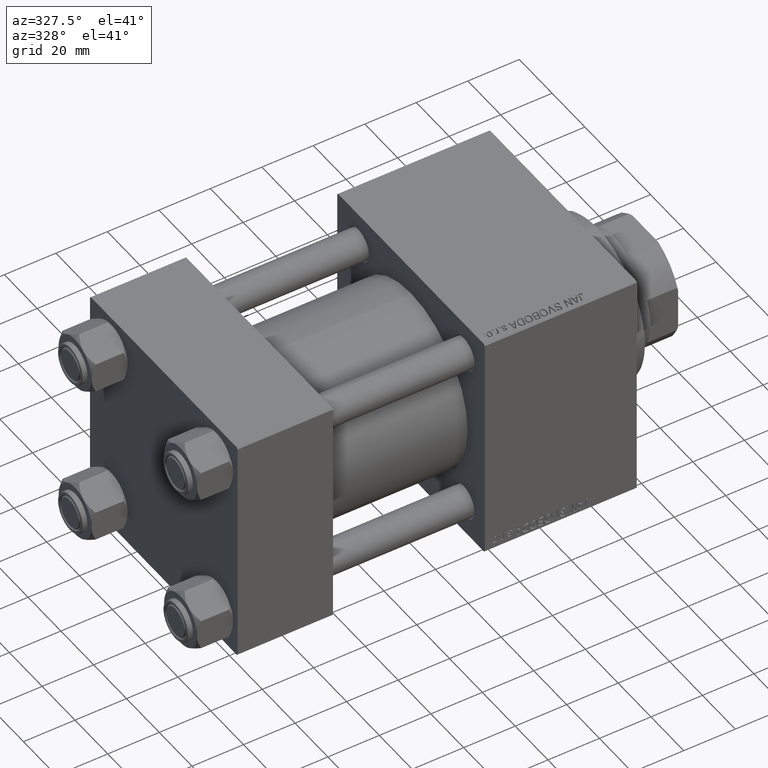
[diagram: clean part render]
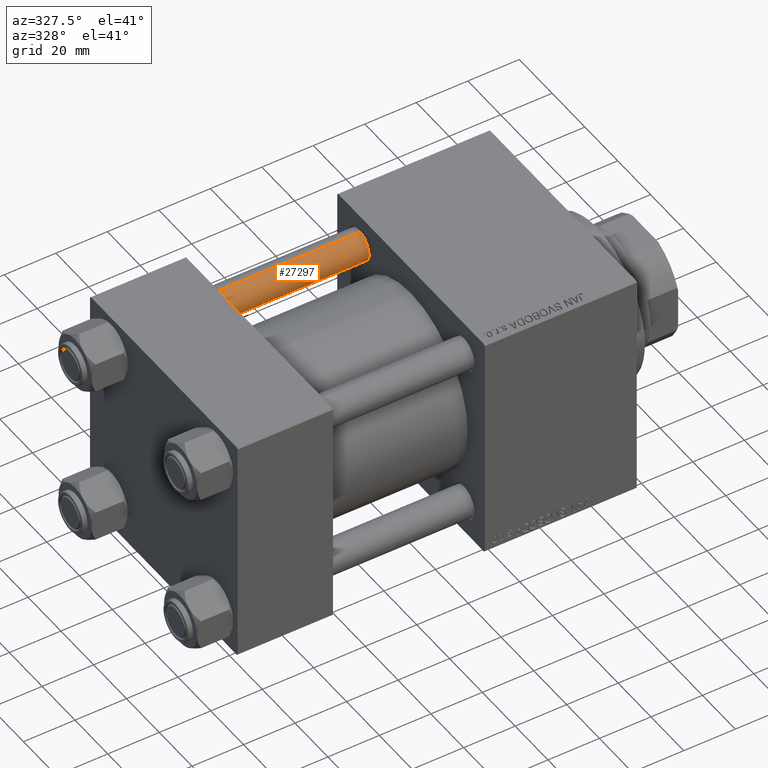
[diagram: same view with one face highlighted and labeled with its STEP entity id]
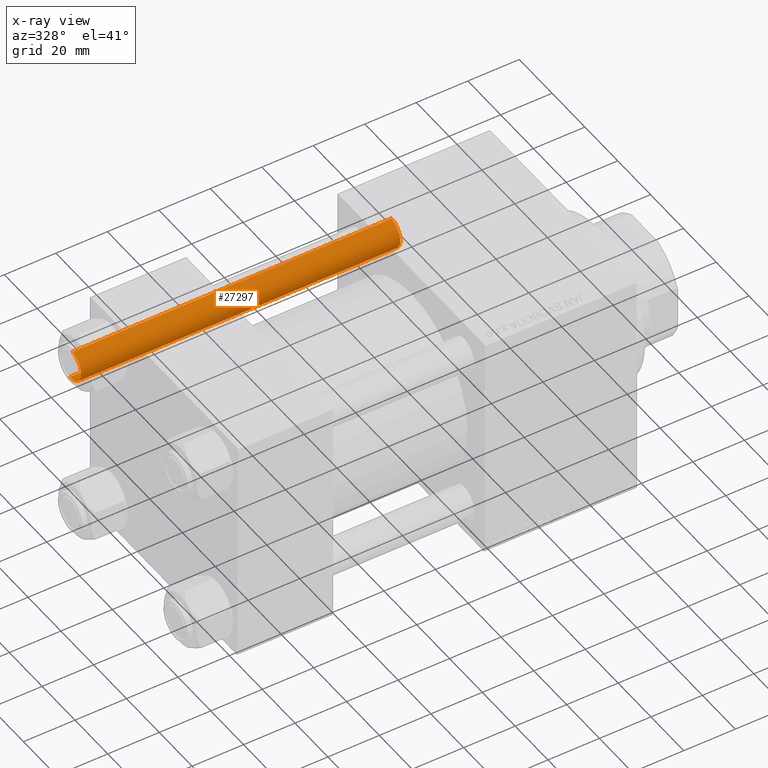
[diagram: x-ray of the same camera — body ghosted, the highlighted face saturated]
A machine part, auxiliary view. The second image highlights one B-rep face of the part: STEP entity #27297.
The next image is the same camera in x-ray: the body ghosted, the highlighted face saturated — about 0% of this face is hidden behind the body in this view.
In plain terms, the highlighted cylindrical surface (edge-blend (fillet) strip) has radius 6 mm, axis along (-1, 0, 0).
Its self-contained STEP definition (entity closure, byte-faithful):
#3095 = VERTEX_POINT ( 'NONE', #40991 ) ;
#3236 = ORIENTED_EDGE ( 'NONE', *, *, #10460, .T. ) ;
#6092 = CARTESIAN_POINT ( 'NONE',  ( 0.000000000000000000, 0.000000000000000000, 0.4999999999999865663 ) ) ;
#7191 = CARTESIAN_POINT ( 'NONE',  ( -6.000000000000000888, 0.000000000000000000, 125.0000000000000000 ) ) ;
#8195 = CARTESIAN_POINT ( 'NONE',  ( 6.000000000000000888, 7.347880794884120722E-16, 125.0000000000000000 ) ) ;
#9418 = DIRECTION ( 'NONE',  ( -0.000000000000000000, -0.000000000000000000, -1.000000000000000000 ) ) ;
#10460 = EDGE_CURVE ( 'NONE', #25505, #3095, #13463, .T. ) ;
#11263 = LINE ( 'NONE', #7191, #32155 ) ;
#11873 = DIRECTION ( 'NONE',  ( 1.000000000000000000, 0.000000000000000000, 0.000000000000000000 ) ) ;
#12623 = VERTEX_POINT ( 'NONE', #37306 ) ;
#13463 = CIRCLE ( 'NONE', #14257, 6.000000000000000888 ) ;
#14257 = AXIS2_PLACEMENT_3D ( 'NONE', #34521, #19234, #11873 ) ;
#15316 = DIRECTION ( 'NONE',  ( -0.000000000000000000, -0.000000000000000000, -1.000000000000000000 ) ) ;
#16353 = ORIENTED_EDGE ( 'NONE', *, *, #39525, .T. ) ;
#18032 = DIRECTION ( 'NONE',  ( -0.000000000000000000, -0.000000000000000000, 1.000000000000000000 ) ) ;
#19234 = DIRECTION ( 'NONE',  ( 0.000000000000000000, 0.000000000000000000, -1.000000000000000000 ) ) ;
#21277 = EDGE_CURVE ( 'NONE', #25505, #34779, #35429, .T. ) ;
#21605 = DIRECTION ( 'NONE',  ( 1.000000000000000000, 0.000000000000000000, 0.000000000000000000 ) ) ;
#24426 = FACE_OUTER_BOUND ( 'NONE', #28447, .T. ) ;
#25505 = VERTEX_POINT ( 'NONE', #38522 ) ;
#26539 = CARTESIAN_POINT ( 'NONE',  ( 6.000000000000000888, 7.347880794884120722E-16, 0.4999999999999865663 ) ) ;
#27297 = ADVANCED_FACE ( 'NONE', ( #24426 ), #28994, .T. ) ;
#28447 = EDGE_LOOP ( 'NONE', ( #30144, #3236, #16353, #35785 ) ) ;
#28491 = AXIS2_PLACEMENT_3D ( 'NONE', #36636, #9418, #44520 ) ;
#28994 = CYLINDRICAL_SURFACE ( 'NONE', #28491, 6.000000000000000888 ) ;
#30144 = ORIENTED_EDGE ( 'NONE', *, *, #21277, .F. ) ;
#32155 = VECTOR ( 'NONE', #15316, 1000.000000000000000 ) ;
#33250 = VECTOR ( 'NONE', #47118, 1000.000000000000000 ) ;
#34521 = CARTESIAN_POINT ( 'NONE',  ( 0.000000000000000000, 0.000000000000000000, 124.5000000000000000 ) ) ;
#34779 = VERTEX_POINT ( 'NONE', #26539 ) ;
#35429 = LINE ( 'NONE', #8195, #33250 ) ;
#35785 = ORIENTED_EDGE ( 'NONE', *, *, #40152, .T. ) ;
#36636 = CARTESIAN_POINT ( 'NONE',  ( 0.000000000000000000, 0.000000000000000000, 125.0000000000000000 ) ) ;
#37306 = CARTESIAN_POINT ( 'NONE',  ( -6.000000000000000888, 0.000000000000000000, 0.4999999999999865663 ) ) ;
#38522 = CARTESIAN_POINT ( 'NONE',  ( 6.000000000000000888, 7.347880794884120722E-16, 124.5000000000000000 ) ) ;
#39525 = EDGE_CURVE ( 'NONE', #3095, #12623, #11263, .T. ) ;
#40152 = EDGE_CURVE ( 'NONE', #12623, #34779, #46762, .T. ) ;
#40991 = CARTESIAN_POINT ( 'NONE',  ( -6.000000000000000888, 0.000000000000000000, 124.5000000000000000 ) ) ;
#44520 = DIRECTION ( 'NONE',  ( -1.000000000000000000, 0.000000000000000000, 0.000000000000000000 ) ) ;
#45954 = AXIS2_PLACEMENT_3D ( 'NONE', #6092, #18032, #21605 ) ;
#46762 = CIRCLE ( 'NONE', #45954, 6.000000000000000888 ) ;
#47118 = DIRECTION ( 'NONE',  ( -0.000000000000000000, -0.000000000000000000, -1.000000000000000000 ) ) ;